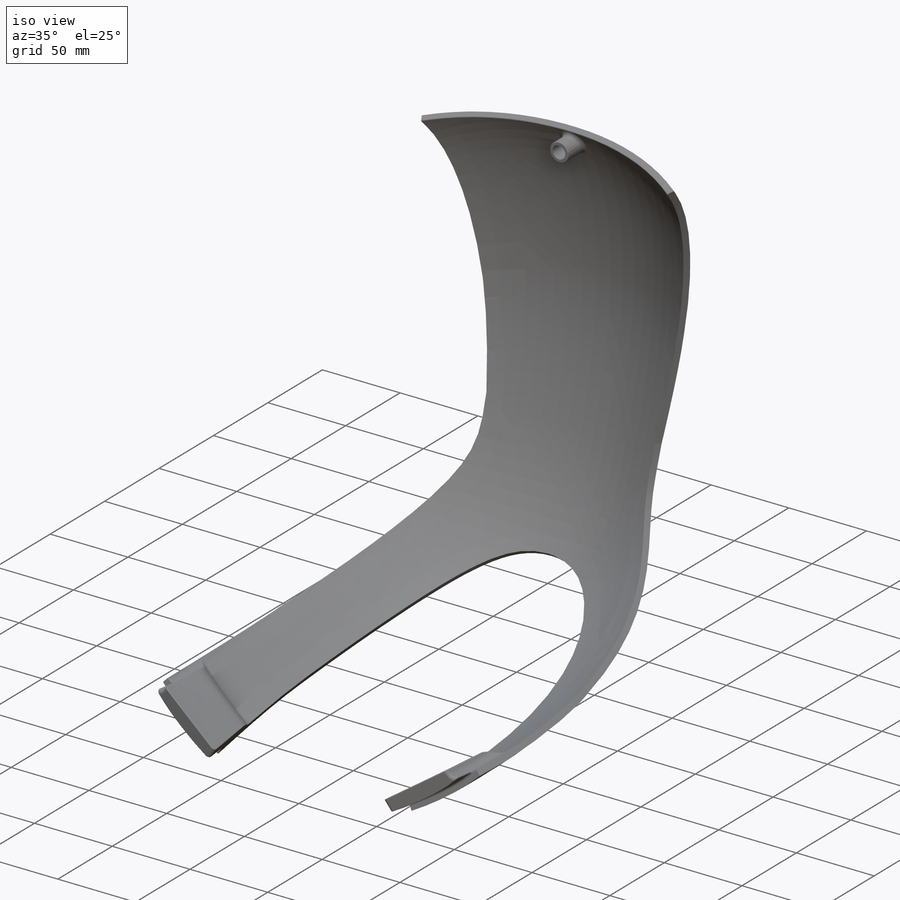
[diagram: iso view]
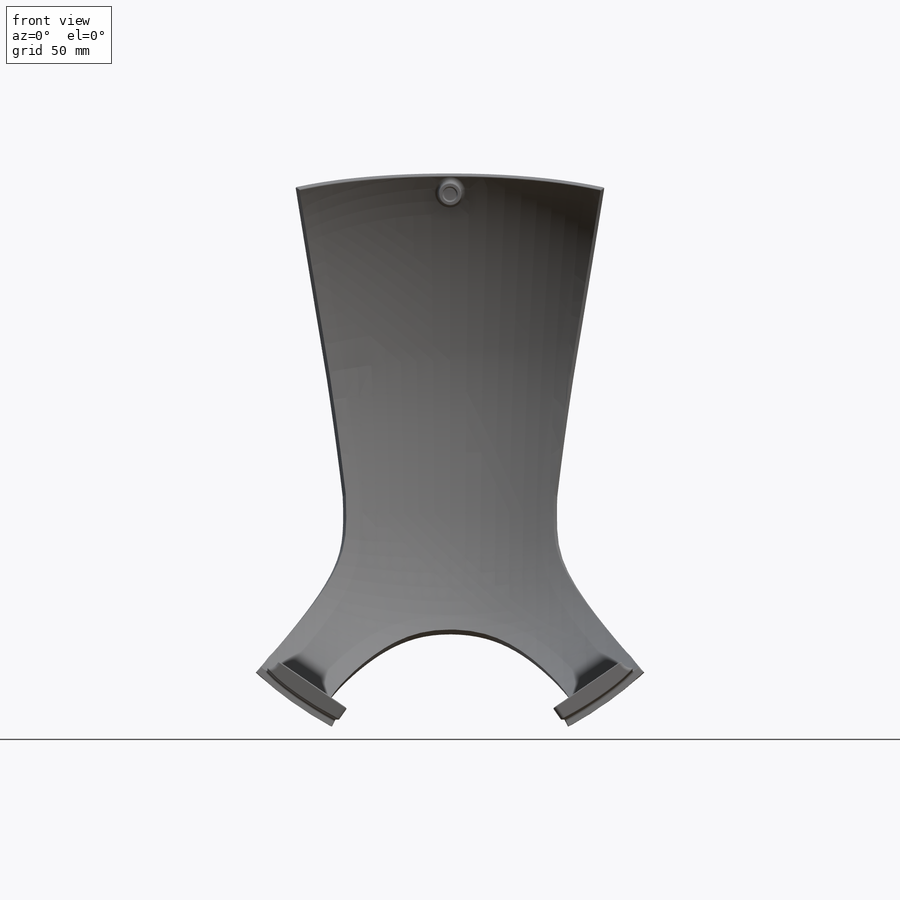
[diagram: front view]
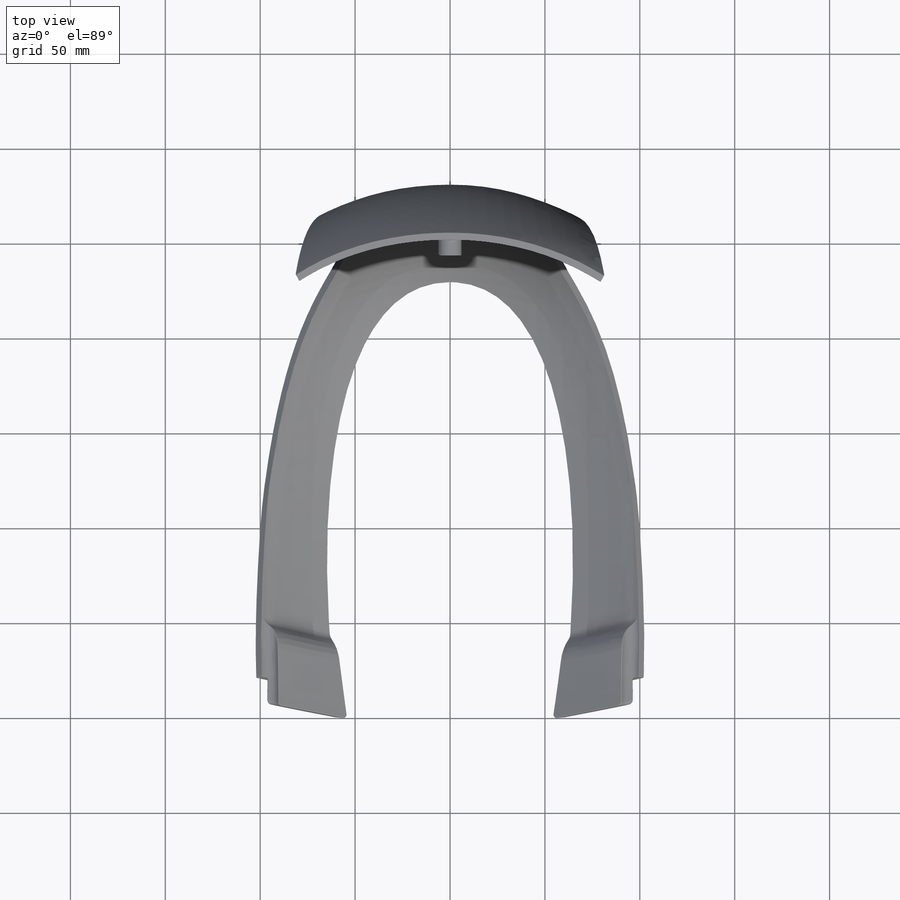
[diagram: top view]
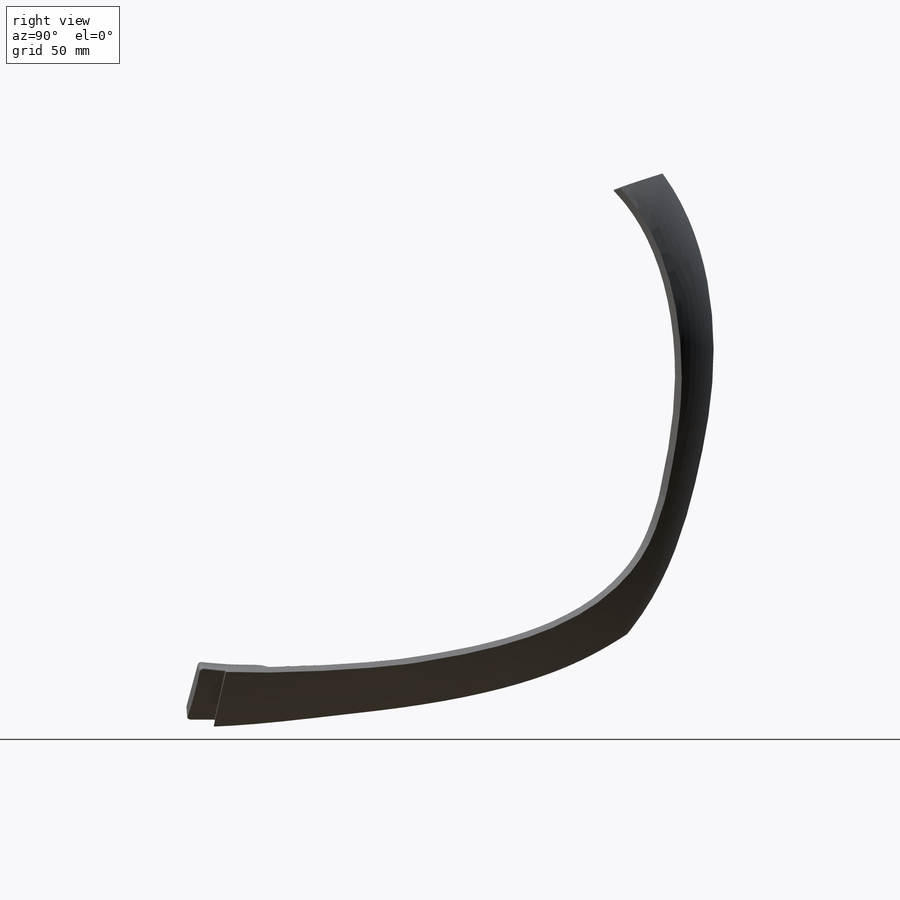
[diagram: right view]
SOLIDWORKS PART (.sldprt)
format: sldprt  version: not decoded by parser v0  size: 38,691,328 bytes
history: native  units: mm
features: sketch x33, fillet x25, plane x24, mirror x12, surface_op x4, extrude x4, material x2, shell x2, boolean_combine x2, move_body x1 + 4 further entries (+42 scaffold rows collapsed; 9 parser-record rows omitted)
feature tree (164):
  scaffold x42  (default folders/planes/origin — collapsed)
  material  "Material <nicht festgelegt>"
  material  "Ausformung4"
  plane  "Ebene vorne"
  parser-record x9  (decoder bookkeeping rows leaked as tree rows — omitted from the tree; the rows remain in map.json)
  sketch  "bildvorlage_gesicht verbreitert"  dims[c1.D1=~2077.482644mm c2.D1=350.0mm c2.D2=200.0mm c2.D3=175.0mm c3.D2=140.0mm c3.D3=140.0mm c4.D2=~290.354091mm]
  plane  "Ebene4"  Offset=200mm
  plane  "Ebene11"
  plane  "Ebene12"
  plane  "Ebene13"
  plane  "Ebene14"  Offset=12mm
  plane  "Ebene15"  Offset=60mm
  plane  "Ebene17"
  plane  "Ebene18"
  sketch  "Skizze60"
  sketch  "Skizze61"
  sketch  "Skizze62"
  sketch  "Skizze63"
  sketch  "Skizze65"
  sketch  "Skizze66"
  sketch  "Skizze67"
  sketch  "Skizze68"
  sketch  "Skizze70"
  mirror  "Spiegeln1"
  surface_op  "Oberfläche-Ebene2"
  "Spiegeln2"
  sketch  "3D-Skizze2"
  sketch  "Skizze74"  dims[D1=270.0mm D2=280.0mm D3=60.0mm D4=60.0mm D5=100.0mm D6=100.0mm]
  sketch  "Skizze75"  dims[c1.D1=280.0mm c1.D2=130.0mm c1.D3=130.0mm c2.D1=330.0mm c2.D4=180.0mm c2.D5=120.0mm c2.D6=120.0mm c3.D1=191.0mm c3.D2=68.0mm c3.D3=34.0mm c3.D4=222.0mm c4.D1=~0.836151mm c4.D3=~215.004935mm]
  sketch  "Skizze76"
  sketch  "Skizze79"
  sketch  "Skizze77"  dims[c1.D1=113.0mm c1.D2=50.0mm c2.D2=35.0mm c2.D3=75.0mm c3.D3=~84.822592mm]
  sketch  "Skizze78"
  sketch  "Skizze85"
  sketch  "Skizze86"  dims[D1=160.0mm D2=120.0mm]
  surface_op  "Oberfläche-Ausformung3"
  "Spiegeln4"
  move_body  "Körper-Verschieben/Kopieren5"  Körper-Verschieben/Kopieren6=0deg
  plane  "Ebene19"  Offset=200mm
  sketch  "Skizze89"  dims[D1=12.0mm]
  sketch  "Skizze90"  dims[D1=10.0mm]
  sketch  "Skizze91"  dims[D1=10.0mm]
  surface_op  "Oberfläche-Ausformung5"
  surface_op  "Oberfläche-Ausformung6"
  sketch  "Wanddicke auftragen5"  dims[D1=1.0mm]
  sketch  "Wanddicke auftragen6"  dims[D1=1.0mm]
  extrude  "Aufsatz-Linear austragen4"  [1 undecoded]
  shell  "Wandung2"  Thickness=4mm
  sketch  "Wandung3"  dims[D1=4.0mm]
  boolean_combine  "Kombinieren13"
  "Spiegeln11"
  plane  "Ebene20"  Offset=200mm
  shell  "Trennlinie4"  Thickness=8.281389mm
  mirror  "Schnitt-Linear austragen1"
  mirror  "Schnitt-Linear austragen2"
  boolean_combine  "Oberflächenausfüllung2"
  "Skizzenbild9"  Abspalten8=0mm
  extrude  "Kombinieren14"  Depth=28.61675mm
  extrude  "Kombinieren15"  Depth=0mm Abspalten10=0mm Abspalten11=0mm
  mirror  "Aufsatz-Linear austragen5"
  mirror  "Aufsatz-Linear austragen6"
  extrude  "Kombinieren25"  [1 undecoded]
  fillet  "Verrundung8"  Radius=30mm
  fillet  "Verrundung9"  Radius=30mm
  plane  "Ebene23"  Offset=200mm
  plane  "Ebene21"  Offset=180mm
  plane  "Ebene22"  Offset=200mm
  sketch  "Skizze93"  dims[D1=12.0mm D2=12.0mm D3=40.0mm D4=20.0mm D5=240.0mm]
  mirror  "kameras"
  sketch  "Wanddicke auftragen7"  dims[c1.D1=4.0mm c2.D1=1.0mm c2.Abspalten12=0.0mm]
  plane  "Ebene24"
  plane  "Ebene25"  Offset=20mm
  sketch  "Skizze94"  dims[c1.D2=40.0mm c1.D6=250.0mm c1.D1=25.0mm c2.D2=15.0mm c2.D3=15.0mm c2.D4=~104.719755mm c3.D2=15.0mm c3.D4=25.0mm c3.D5=~1308.996939mm c3.D7=4.991mm c3.D8=0.0mm c3.D9=~43.658839mm]
  mirror  "Aufsatz-Linear austragen7"
  plane  "Ebene32"
  plane  "Ebene33"  Offset=2mm
  sketch  "Skizze106"  dims[D5=320.0mm D1=28.0mm D2=50.0mm D3=17.0mm D4=10.0mm]
  mirror  "Schnitt-Linear austragen5"
  fillet  "Verrundung57"  Radius=5mm
  fillet  "Verrundung58"  Radius=5mm
  fillet  "Verrundung59"  Radius=15mm
  fillet  "Verrundung61"  Radius=2mm
  fillet  "Verrundung60"  Radius=0.5mm
  fillet  "Verrundung62"  Radius=0.5mm
  fillet  "Verrundung64"  Radius=0.5mm
  fillet  "Verrundung65"  Radius=0.5mm
  fillet  "Verrundung67"  Radius=0.5mm
  plane  "Ebene28"
  plane  "Ebene29"  Offset=20mm
  sketch  "Skizze99"  dims[c1.D6=250.0mm c1.D1=25.0mm c1.D2=15.0mm c1.D3=45.0mm c1.D4=~1.353741mm c2.D3=45.0mm c2.D4=15.0mm c3.D3=15.0mm c3.D4=25.0mm c3.D5=0.0mm c3.D7=~1308.996939mm c3.D8=~43.658678mm c3.D9=~4.991152mm]
  mirror  "Aufsatz-Linear austragen45"
  plane  "Ebene30"
  plane  "Ebene31"  Offset=5mm
  sketch  "Skizze104"  dims[c1.D3=320.0mm c1.D1=4.0mm c1.D2=6.0mm c1.D4=28.0mm c1.D5=50.0mm c2.D2=10.0mm c2.D1=17.0mm c2.D6=~88.450285mm]
  mirror  "Schnitt-Linear austragen4"
  fillet  "Verrundung36"  Radius=5mm
  fillet  "Verrundung38"  Radius=5mm
  fillet  "Verrundung39"  Radius=15mm
  fillet  "Verrundung42"  Radius=2mm
  fillet  "Verrundung44"  Radius=0.5mm
  fillet  "Verrundung46"  Radius=0.5mm
  fillet  "Verrundung47"  Radius=0.5mm
  fillet  "Verrundung49"  Radius=0.5mm
  fillet  "Verrundung73"  Radius=0.5mm
  plane  "Ebene35"  Offset=150.5mm
  plane  "Ebene34"  Offset=139mm
  sketch  "Skizze107"  dims[D1=12.0mm D2=8.1mm D3=294.0mm]
  mirror  "Aufsatz-Linear austragen50"
  fillet  "Verrundung18"  Radius=2mm
  sketch  "Skizze108"
  mirror  "Aufsatz-Linear austragen51"
  fillet  "Verrundung75"  Radius=1mm
  fillet  "Verrundung76"  Radius=0.5mm
  fillet  "Verrundung84"  Radius=1mm
  fillet  "Verrundung85"  Radius=0.5mm
decode coverage: 48 of 83 modeling features carry decoded parameters; 4 rows unclassified (native names shown)
note: ~ marks probable driven/reference dimensions
note: 2 parameter values undecoded
summary: [note 2] (x50 features) parser:v0:name_prior (class ref resolved by constrained assignment + name prior)
note: suppression state not decoded; provenance and decode notes live in map.json
